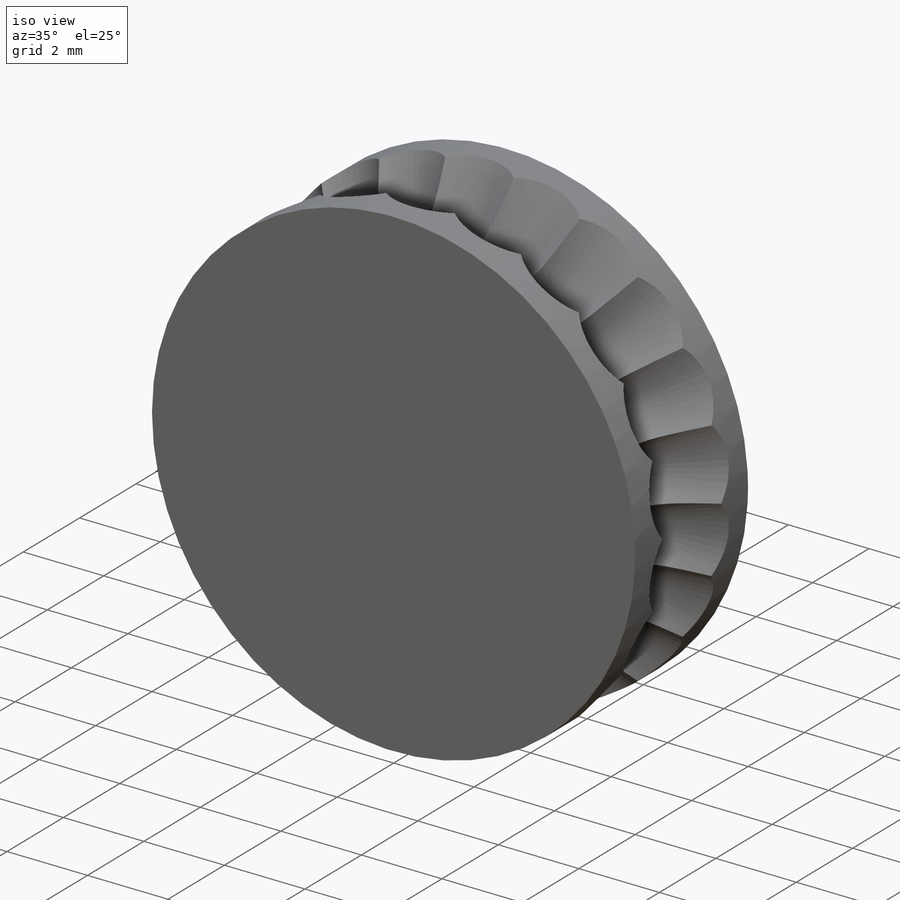
[diagram: iso view]
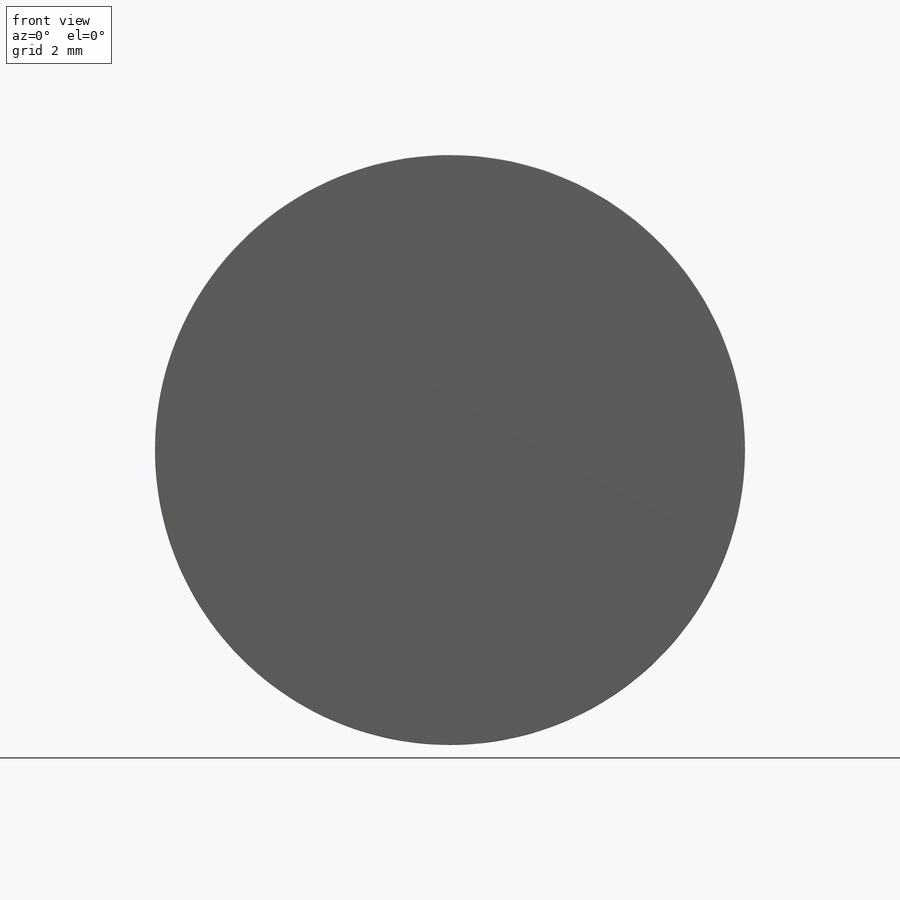
[diagram: front view]
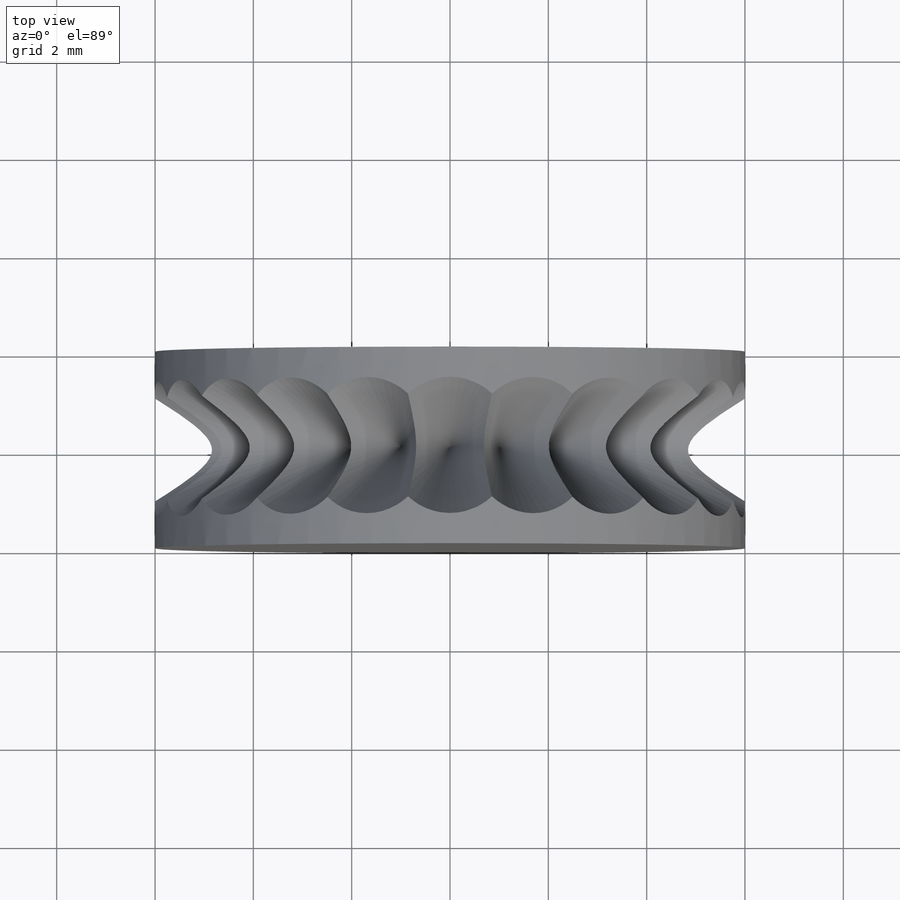
[diagram: top view]
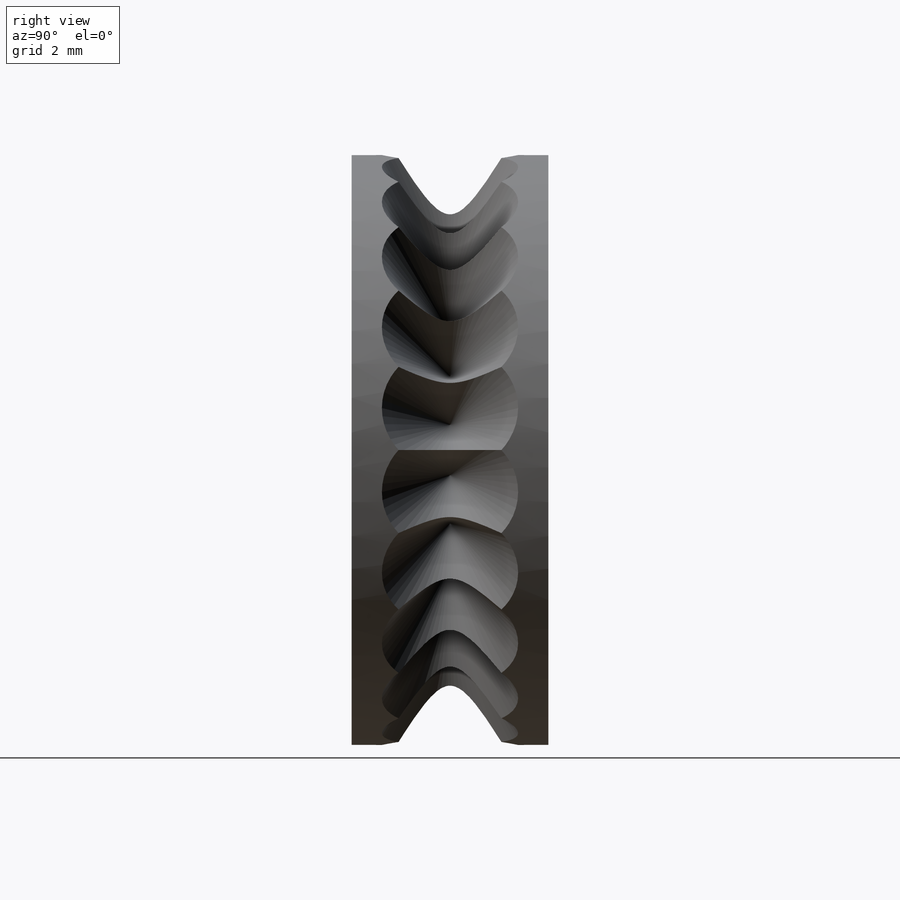
[diagram: right view]
SOLIDWORKS PART (.sldprt)
format: sldprt  version: not decoded by parser v0  size: 261,632 bytes
history: native  units: mm
features: sketch x3, extrude x2, material x1, cut_revolve x1, pattern_circular x1 (+13 scaffold rows collapsed)
feature tree (21):
  scaffold x13  (default folders/planes/origin — collapsed)
  material  "Material <not specified>"
  sketch  "Sketch1"  dims[D1=12.0mm]
  extrude  "Boss-Extrude1"  Depth=4mm
  sketch  "Sketch2"  dims[c1.D1=3.6mm c1.D2=~3.168845mm c2.D2=30.0deg c3.D2=~4.682897mm c4.D2=30.0deg]
  cut_revolve  "Cut-Revolve1"  Angle=360deg
  pattern_circular  "CirPattern1"  Count=22 Angle=360deg
  sketch  "Sketch5"  dims[D1=1.75mm D2=5.8mm]
  extrude  "Boss-Extrude2"  Depth=10mm
decode coverage: 7 of 7 modeling features carry decoded parameters
note: ~ marks probable driven/reference dimensions
note: suppression state not decoded; provenance and decode notes live in map.json
